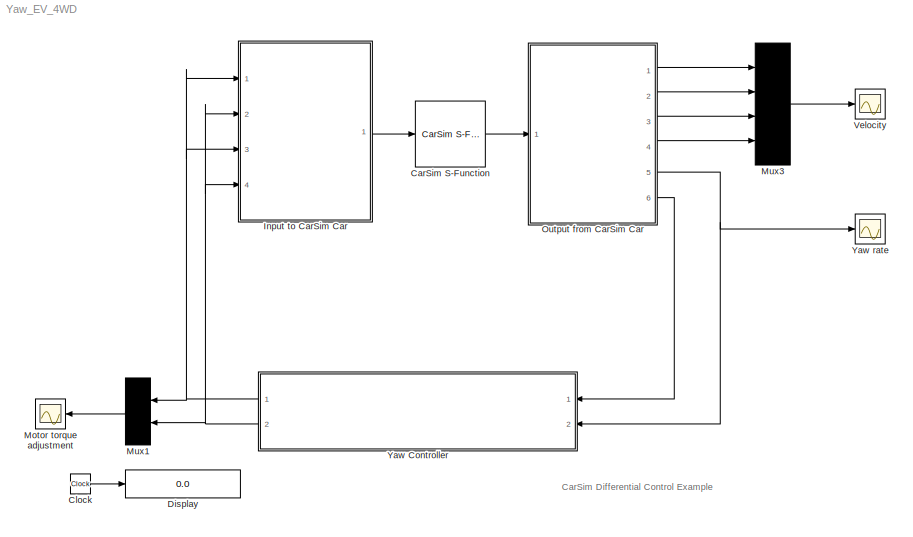
MODEL Yaw_EV_4WD
KIND model
BLOCK [Reference] CarSim S-Function  REF=Solver_SF/CarSim S-Function
  Ports = [1, 1]
  Priority = 1
  Run_RTs = off
  SID = 1
  SIMFILE = simfile.sim
  SourceBlock = Solver_SF/CarSim S-Function
  SourceType = Vehicle math model library
  StopMode_ind = Vehicle Model
  vs_state_ind = Run
BLOCK [Clock] Clock
  SID = 2
BLOCK [Display] Display
  Decimation = 100
  Format = bank
  Ports = [1]
  SID = 4
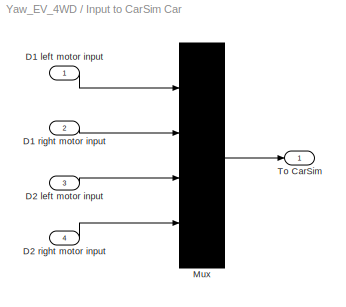
BLOCK [SubSystem] Input to CarSim Car
  FunctionWithSeparateData = off
  MaskHideContents = off
  MinAlgLoopOccurrences = off
  Opaque = off
  Ports = [4, 1]
  PropExecContextOutsideSubsystem = off
  RTWSystemCode = Auto
  RequestExecContextInheritance = off
  SID = 5
BLOCK [Inport] Input to CarSim Car/D1 left motor input
  IconDisplay = Port number
  SID = 10
BLOCK [Inport] Input to CarSim Car/D1 right motor input
  IconDisplay = Port number
  Port = 2
  SID = 11
BLOCK [Inport] Input to CarSim Car/D2 left motor input
  IconDisplay = Port number
  Port = 3
  SID = 14
BLOCK [Inport] Input to CarSim Car/D2 right motor input
  IconDisplay = Port number
  Port = 4
  SID = 15
BLOCK [Mux] Input to CarSim Car/Mux
  Ports = [4, 1]
  SID = 19
BLOCK [Outport] Input to CarSim Car/To CarSim
  IconDisplay = Port number
  SID = 20
BLOCK [Scope] Motor torque adjustment
  DataFormat = Array
  Decimation = 1
  Floating = off
  Grid = on
  LimitDataPoints = off
  MaxDataPoints = 5000
  NumInputPorts = 1
  Ports = [1]
  SID = 73
  SampleInput = off
  SampleTime = -1
  SaveName = ScopeData1
  SaveToWorkspace = off
  ShowLegends = off
  TickLabels = on
  TimeRange = auto
  YMax = 300
  YMin = -300
  ZoomMode = on
BLOCK [Mux] Mux1
  Inputs = 2
  Ports = [2, 1]
  SID = 74
BLOCK [Mux] Mux3
  Ports = [4, 1]
  SID = 24
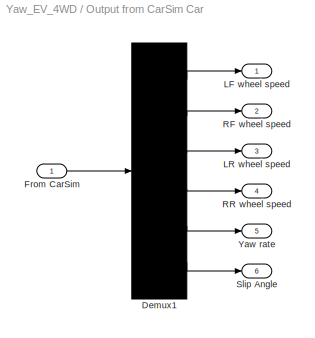
BLOCK [SubSystem] Output from CarSim Car
  FunctionWithSeparateData = off
  MaskHideContents = off
  MinAlgLoopOccurrences = off
  Opaque = off
  Ports = [1, 6]
  PropExecContextOutsideSubsystem = off
  RTWSystemCode = Auto
  RequestExecContextInheritance = off
  SID = 25
BLOCK [Demux] Output from CarSim Car/Demux1
  Outputs = 6
  Ports = [1, 6]
  SID = 27
BLOCK [Inport] Output from CarSim Car/From CarSim
  IconDisplay = Port number
  SID = 26
BLOCK [Outport] Output from CarSim Car/LF wheel speed
  IconDisplay = Port number
  SID = 34
BLOCK [Outport] Output from CarSim Car/LR wheel speed
  IconDisplay = Port number
  Port = 3
  SID = 36
BLOCK [Outport] Output from CarSim Car/RF wheel speed
  IconDisplay = Port number
  Port = 2
  SID = 35
BLOCK [Outport] Output from CarSim Car/RR wheel speed
  IconDisplay = Port number
  Port = 4
  SID = 37
BLOCK [Outport] Output from CarSim Car/Slip Angle
  IconDisplay = Port number
  Port = 6
  SID = 42
BLOCK [Outport] Output from CarSim Car/Yaw rate
  IconDisplay = Port number
  Port = 5
  SID = 39
BLOCK [Scope] Velocity
  DataFormat = Array
  Decimation = 1
  Floating = off
  Grid = on
  LimitDataPoints = off
  MaxDataPoints = 5000
  NumInputPorts = 1
  Ports = [1]
  SID = 53
  SampleInput = off
  SampleTime = -1
  SaveName = ScopeData
  SaveToWorkspace = off
  ShowLegends = off
  TickLabels = on
  TimeRange = auto
  YMax = 160
  YMin = 80
  ZoomMode = on
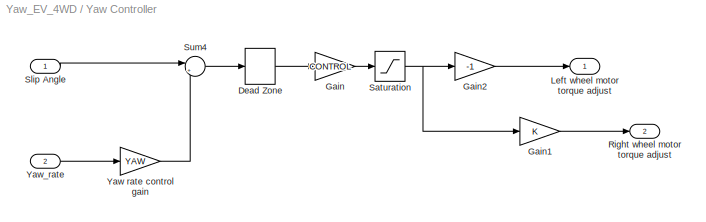
BLOCK [SubSystem] Yaw Controller
  FunctionWithSeparateData = off
  MaskHideContents = off
  MinAlgLoopOccurrences = off
  Opaque = off
  Ports = [2, 2]
  PropExecContextOutsideSubsystem = off
  RTWSystemCode = Auto
  RequestExecContextInheritance = off
  SID = 54
BLOCK [DeadZone] Yaw Controller/Dead Zone
  SID = 57
BLOCK [Gain] Yaw Controller/Gain
  Gain = CONTROL
  SID = 58
BLOCK [Gain] Yaw Controller/Gain1
  SID = 59
BLOCK [Gain] Yaw Controller/Gain2
  Gain = -1
  SID = 75
BLOCK [Outport] Yaw Controller/Left wheel motor torque adjust
  IconDisplay = Port number
  SID = 64
BLOCK [Outport] Yaw Controller/Right wheel motor torque adjust
  IconDisplay = Port number
  Port = 2
  SID = 65
BLOCK [Saturate] Yaw Controller/Saturation
  InputPortMap = u0
  LowerLimit = -MAX_TORQUE
  Ports = [1, 1]
  SID = 76
  UpperLimit = MAX_TORQUE
BLOCK [Inport] Yaw Controller/Slip Angle
  IconDisplay = Port number
  SID = 55
BLOCK [Sum] Yaw Controller/Sum4
  IconShape = round
  Inputs = |+-
  Ports = [2, 1]
  SID = 62
BLOCK [Gain] Yaw Controller/Yaw rate control gain
  Gain = YAW
  SID = 63
BLOCK [Inport] Yaw Controller/Yaw_rate
  IconDisplay = Port number
  Port = 2
  SID = 56
BLOCK [Scope] Yaw rate
  DataFormat = Array
  Decimation = 1
  Floating = off
  Grid = on
  LimitDataPoints = off
  MaxDataPoints = 5000
  NumInputPorts = 1
  Ports = [1]
  SID = 66
  SampleInput = off
  SampleTime = -1
  SaveName = ScopeData
  SaveToWorkspace = off
  ShowLegends = off
  TickLabels = on
  TimeRange = auto
  YMax = 20
  YMin = -20
  ZoomMode = on
ANNOTATION (root): CarSim Differential Control Example
LINE CarSim S-Function:1 -> Output from CarSim Car:1
LINE Clock:1 -> Display:1
LINE Input to CarSim Car/D1 left motor input:1 -> Input to CarSim Car/Mux:1
LINE Input to CarSim Car/D1 right motor input:1 -> Input to CarSim Car/Mux:2
LINE Input to CarSim Car/D2 left motor input:1 -> Input to CarSim Car/Mux:3
LINE Input to CarSim Car/D2 right motor input:1 -> Input to CarSim Car/Mux:4
LINE Input to CarSim Car/Mux:1 -> Input to CarSim Car/To CarSim:1
LINE Input to CarSim Car:1 -> CarSim S-Function:1
LINE Mux1:1 -> Motor torque adjustment:1
LINE Mux3:1 -> Velocity:1
LINE Output from CarSim Car/Demux1:1 -> Output from CarSim Car/LF wheel speed:1
LINE Output from CarSim Car/Demux1:2 -> Output from CarSim Car/RF wheel speed:1
LINE Output from CarSim Car/Demux1:3 -> Output from CarSim Car/LR wheel speed:1
LINE Output from CarSim Car/Demux1:4 -> Output from CarSim Car/RR wheel speed:1
LINE Output from CarSim Car/Demux1:5 -> Output from CarSim Car/Yaw rate:1
LINE Output from CarSim Car/Demux1:6 -> Output from CarSim Car/Slip Angle:1
LINE Output from CarSim Car/From CarSim:1 -> Output from CarSim Car/Demux1:1
LINE Output from CarSim Car:1 -> Mux3:1
LINE Output from CarSim Car:2 -> Mux3:2
LINE Output from CarSim Car:3 -> Mux3:3
LINE Output from CarSim Car:4 -> Mux3:4
NET Output from CarSim Car:5 -> Yaw Controller:2, Yaw rate:1
LINE Output from CarSim Car:6 -> Yaw Controller:1
LINE Yaw Controller/Dead Zone:1 -> Yaw Controller/Gain:1
LINE Yaw Controller/Gain1:1 -> Yaw Controller/Right wheel motor torque adjust:1
LINE Yaw Controller/Gain2:1 -> Yaw Controller/Left wheel motor torque adjust:1
LINE Yaw Controller/Gain:1 -> Yaw Controller/Saturation:1
NET Yaw Controller/Saturation:1 -> Yaw Controller/Gain1:1, Yaw Controller/Gain2:1
LINE Yaw Controller/Slip Angle:1 -> Yaw Controller/Sum4:1
LINE Yaw Controller/Sum4:1 -> Yaw Controller/Dead Zone:1
LINE Yaw Controller/Yaw rate control gain:1 -> Yaw Controller/Sum4:2
LINE Yaw Controller/Yaw_rate:1 -> Yaw Controller/Yaw rate control gain:1
NET Yaw Controller:1 -> Input to CarSim Car:1, Input to CarSim Car:3, Mux1:1
NET Yaw Controller:2 -> Input to CarSim Car:2, Input to CarSim Car:4, Mux1:2
note: NET lines group one-source signal fan-out (src -> all destinations, sorted); 1:1 wires keep LINE
